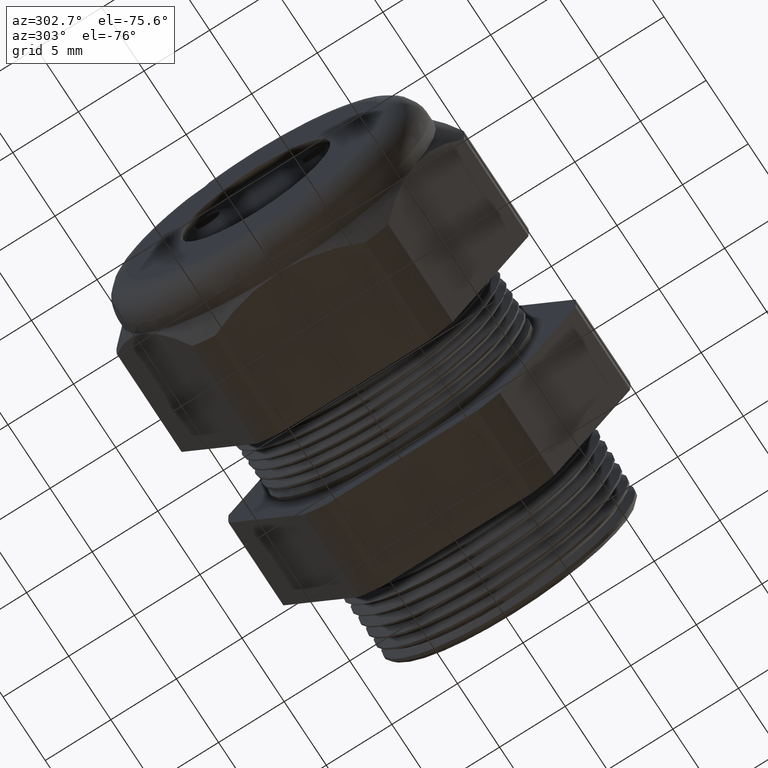
[diagram: clean part render]
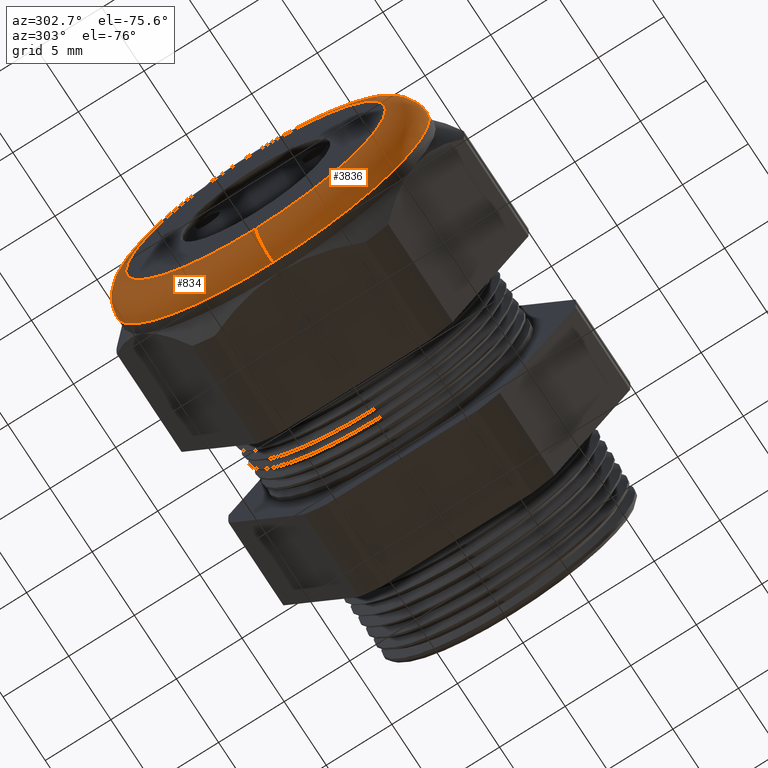
[diagram: same view with one multi-face feature highlighted, each face labeled with its STEP entity id]
A machine part, auxiliary view. The highlighted faces form ONE feature: a constant-radius fillet chain: 2 tangent blend faces with common blend radius 2.032 mm. The faces share edges in the B-rep.
Their STEP definitions:
[1] entity #834 (Torus):
#753 = ORIENTED_EDGE ( 'NONE', *, *, #756, .F. ) ;
#756 = EDGE_CURVE ( 'NONE', #757, #769, #2387, .T. ) ;
#757 = VERTEX_POINT ( 'NONE', #2382 ) ;
#762 = ORIENTED_EDGE ( 'NONE', *, *, #868, .F. ) ;
#769 = VERTEX_POINT ( 'NONE', #2423 ) ;
#770 = ORIENTED_EDGE ( 'NONE', *, *, #798, .T. ) ;
#798 = EDGE_CURVE ( 'NONE', #757, #799, #2500, .T. ) ;
#799 = VERTEX_POINT ( 'NONE', #2495 ) ;
#833 = EDGE_LOOP ( 'NONE', ( #753, #770, #762, #865 ) ) ;
#834 = ADVANCED_FACE ( 'NONE', ( #2556 ), #2554, .T. ) ;
#864 = EDGE_CURVE ( 'NONE', #769, #874, #2617, .T. ) ;
#865 = ORIENTED_EDGE ( 'NONE', *, *, #864, .F. ) ;
#868 = EDGE_CURVE ( 'NONE', #874, #799, #2605, .T. ) ;
#874 = VERTEX_POINT ( 'NONE', #2663 ) ;
#2382 = CARTESIAN_POINT ( 'NONE',  ( -1.169999999999999700, 0.0000000000000000000, -0.4699999999999999200 ) ) ;
#2383 = DIRECTION ( 'NONE',  ( 0.0000000000000000000, 0.0000000000000000000, 1.000000000000000000 ) ) ;
#2384 = DIRECTION ( 'NONE',  ( 1.000000000000000000, 0.0000000000000000000, 0.0000000000000000000 ) ) ;
#2385 = CARTESIAN_POINT ( 'NONE',  ( -1.169999999999999700, 0.0000000000000000000, 0.0000000000000000000 ) ) ;
#2386 = AXIS2_PLACEMENT_3D ( 'NONE', #2385, #2384, #2383 ) ;
#2387 = CIRCLE ( 'NONE', #2386, 0.4699999999999999200 ) ;
#2423 = CARTESIAN_POINT ( 'NONE',  ( -1.169999999999999700, 5.755839955992558400E-017, 0.4699999999999999200 ) ) ;
#2495 = CARTESIAN_POINT ( 'NONE',  ( -1.249999999999999800, 5.265981236333617600E-017, -0.3899999999999999600 ) ) ;
#2496 = DIRECTION ( 'NONE',  ( 0.0000000000000000000, -1.224646799147353900E-016, 1.000000000000000000 ) ) ;
#2497 = DIRECTION ( 'NONE',  ( 0.0000000000000000000, 1.000000000000000000, 1.224646799147353200E-016 ) ) ;
#2498 = CARTESIAN_POINT ( 'NONE',  ( -1.169999999999999700, 4.776122516674676800E-017, -0.3899999999999999600 ) ) ;
#2499 = AXIS2_PLACEMENT_3D ( 'NONE', #2498, #2497, #2496 ) ;
#2500 = CIRCLE ( 'NONE', #2499, 0.07999999999999996000 ) ;
#2551 = DIRECTION ( 'NONE',  ( 0.0000000000000000000, 0.0000000000000000000, 1.000000000000000000 ) ) ;
#2552 = DIRECTION ( 'NONE',  ( -1.000000000000000000, 0.0000000000000000000, 0.0000000000000000000 ) ) ;
#2553 = AXIS2_PLACEMENT_3D ( 'NONE', #2555, #2552, #2551 ) ;
#2554 = TOROIDAL_SURFACE ( 'NONE', #2553, 0.3899999999999999600, 0.08000000000000000200 ) ;
#2555 = CARTESIAN_POINT ( 'NONE',  ( -1.169999999999999700, 0.0000000000000000000, 0.0000000000000000000 ) ) ;
#2556 = FACE_OUTER_BOUND ( 'NONE', #833, .T. ) ;
#2604 = AXIS2_PLACEMENT_3D ( 'NONE', #2667, #2666, #2665 ) ;
#2605 = CIRCLE ( 'NONE', #2604, 0.3899999999999999600 ) ;
#2613 = DIRECTION ( 'NONE',  ( 0.0000000000000000000, 0.0000000000000000000, -1.000000000000000000 ) ) ;
#2614 = DIRECTION ( 'NONE',  ( 0.0000000000000000000, -1.000000000000000000, 0.0000000000000000000 ) ) ;
#2615 = CARTESIAN_POINT ( 'NONE',  ( -1.169999999999999700, 0.0000000000000000000, 0.3899999999999999600 ) ) ;
#2616 = AXIS2_PLACEMENT_3D ( 'NONE', #2615, #2614, #2613 ) ;
#2617 = CIRCLE ( 'NONE', #2616, 0.07999999999999996000 ) ;
#2663 = CARTESIAN_POINT ( 'NONE',  ( -1.249999999999999800, 0.0000000000000000000, 0.3899999999999999600 ) ) ;
#2665 = DIRECTION ( 'NONE',  ( 0.0000000000000000000, 0.0000000000000000000, 1.000000000000000000 ) ) ;
#2666 = DIRECTION ( 'NONE',  ( -1.000000000000000000, 0.0000000000000000000, 0.0000000000000000000 ) ) ;
#2667 = CARTESIAN_POINT ( 'NONE',  ( -1.249999999999999800, 0.0000000000000000000, 0.0000000000000000000 ) ) ;
[2] entity #3836 (Torus):
#640 = EDGE_CURVE ( 'NONE', #799, #874, #2182, .T. ) ;
#757 = VERTEX_POINT ( 'NONE', #2382 ) ;
#769 = VERTEX_POINT ( 'NONE', #2423 ) ;
#798 = EDGE_CURVE ( 'NONE', #757, #799, #2500, .T. ) ;
#799 = VERTEX_POINT ( 'NONE', #2495 ) ;
#864 = EDGE_CURVE ( 'NONE', #769, #874, #2617, .T. ) ;
#874 = VERTEX_POINT ( 'NONE', #2663 ) ;
#2130 = CARTESIAN_POINT ( 'NONE',  ( -1.249999999999999800, 0.0000000000000000000, 0.0000000000000000000 ) ) ;
#2179 = DIRECTION ( 'NONE',  ( 0.0000000000000000000, 0.0000000000000000000, 1.000000000000000000 ) ) ;
#2180 = DIRECTION ( 'NONE',  ( -1.000000000000000000, 0.0000000000000000000, 0.0000000000000000000 ) ) ;
#2181 = AXIS2_PLACEMENT_3D ( 'NONE', #2130, #2180, #2179 ) ;
#2182 = CIRCLE ( 'NONE', #2181, 0.3899999999999999600 ) ;
#2382 = CARTESIAN_POINT ( 'NONE',  ( -1.169999999999999700, 0.0000000000000000000, -0.4699999999999999200 ) ) ;
#2423 = CARTESIAN_POINT ( 'NONE',  ( -1.169999999999999700, 5.755839955992558400E-017, 0.4699999999999999200 ) ) ;
#2495 = CARTESIAN_POINT ( 'NONE',  ( -1.249999999999999800, 5.265981236333617600E-017, -0.3899999999999999600 ) ) ;
#2496 = DIRECTION ( 'NONE',  ( 0.0000000000000000000, -1.224646799147353900E-016, 1.000000000000000000 ) ) ;
#2497 = DIRECTION ( 'NONE',  ( 0.0000000000000000000, 1.000000000000000000, 1.224646799147353200E-016 ) ) ;
#2498 = CARTESIAN_POINT ( 'NONE',  ( -1.169999999999999700, 4.776122516674676800E-017, -0.3899999999999999600 ) ) ;
#2499 = AXIS2_PLACEMENT_3D ( 'NONE', #2498, #2497, #2496 ) ;
#2500 = CIRCLE ( 'NONE', #2499, 0.07999999999999996000 ) ;
#2613 = DIRECTION ( 'NONE',  ( 0.0000000000000000000, 0.0000000000000000000, -1.000000000000000000 ) ) ;
#2614 = DIRECTION ( 'NONE',  ( 0.0000000000000000000, -1.000000000000000000, 0.0000000000000000000 ) ) ;
#2615 = CARTESIAN_POINT ( 'NONE',  ( -1.169999999999999700, 0.0000000000000000000, 0.3899999999999999600 ) ) ;
#2616 = AXIS2_PLACEMENT_3D ( 'NONE', #2615, #2614, #2613 ) ;
#2617 = CIRCLE ( 'NONE', #2616, 0.07999999999999996000 ) ;
#2663 = CARTESIAN_POINT ( 'NONE',  ( -1.249999999999999800, 0.0000000000000000000, 0.3899999999999999600 ) ) ;
#3139 = DIRECTION ( 'NONE',  ( 0.0000000000000000000, 0.0000000000000000000, 1.000000000000000000 ) ) ;
#3140 = DIRECTION ( 'NONE',  ( 1.000000000000000000, 0.0000000000000000000, 0.0000000000000000000 ) ) ;
#3141 = CARTESIAN_POINT ( 'NONE',  ( -1.169999999999999700, 0.0000000000000000000, 0.0000000000000000000 ) ) ;
#3142 = AXIS2_PLACEMENT_3D ( 'NONE', #3141, #3140, #3139 ) ;
#3143 = CIRCLE ( 'NONE', #3142, 0.4699999999999999200 ) ;
#3340 = DIRECTION ( 'NONE',  ( 0.0000000000000000000, 0.0000000000000000000, 1.000000000000000000 ) ) ;
#3341 = DIRECTION ( 'NONE',  ( -1.000000000000000000, 0.0000000000000000000, 0.0000000000000000000 ) ) ;
#3342 = CARTESIAN_POINT ( 'NONE',  ( -1.169999999999999700, 0.0000000000000000000, 0.0000000000000000000 ) ) ;
#3343 = AXIS2_PLACEMENT_3D ( 'NONE', #3342, #3341, #3340 ) ;
#3344 = TOROIDAL_SURFACE ( 'NONE', #3343, 0.3899999999999999600, 0.08000000000000000200 ) ;
#3345 = FACE_OUTER_BOUND ( 'NONE', #3824, .T. ) ;
#3670 = EDGE_CURVE ( 'NONE', #769, #757, #3143, .T. ) ;
#3821 = ORIENTED_EDGE ( 'NONE', *, *, #640, .F. ) ;
#3823 = ORIENTED_EDGE ( 'NONE', *, *, #864, .T. ) ;
#3824 = EDGE_LOOP ( 'NONE', ( #3825, #3826, #3823, #3821 ) ) ;
#3825 = ORIENTED_EDGE ( 'NONE', *, *, #798, .F. ) ;
#3826 = ORIENTED_EDGE ( 'NONE', *, *, #3670, .F. ) ;
#3836 = ADVANCED_FACE ( 'NONE', ( #3345 ), #3344, .T. ) ;